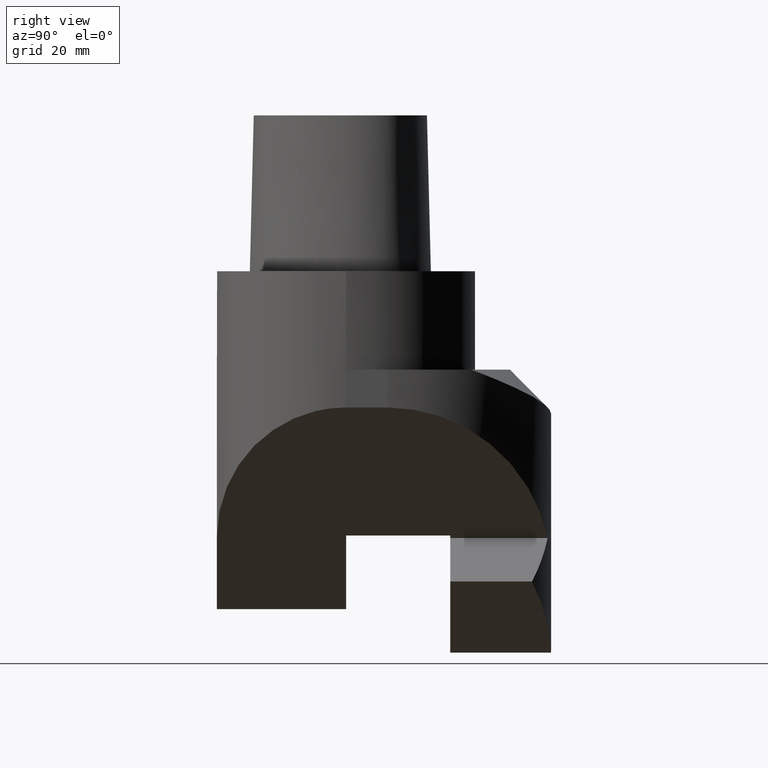
[diagram: clean part render]
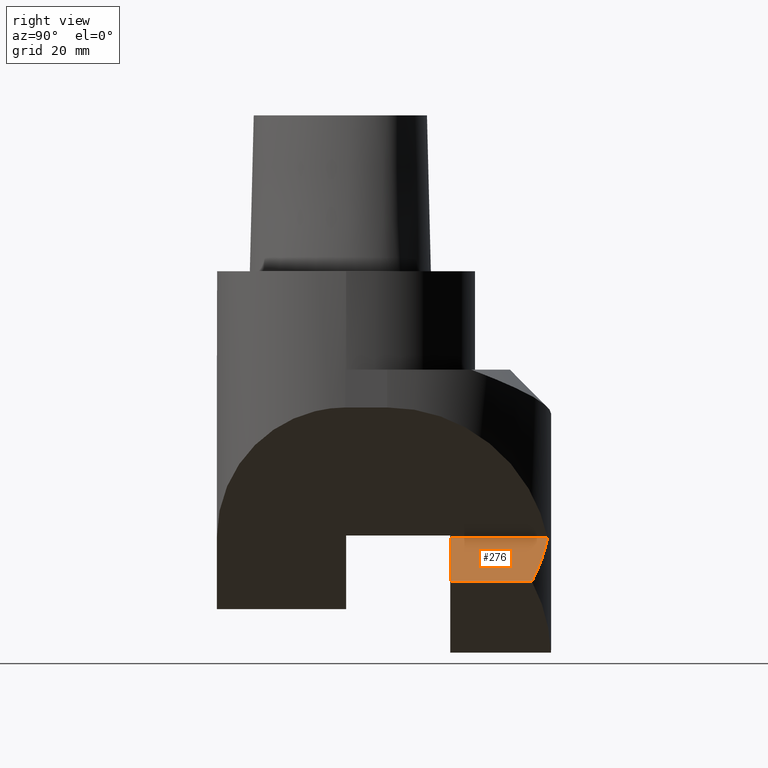
[diagram: same view with one face highlighted and labeled with its STEP entity id]
A machine part, right view. The second image highlights one B-rep face of the part: STEP entity #276.
In plain terms, the highlighted planar face has unit normal (-0.7071, -0, -0.7071).
Its self-contained STEP definition (entity closure, byte-faithful):
#141=EDGE_CURVE('Unnamed[1]',#378,#379,#380,.T.);
#153=EDGE_CURVE('Unnamed[1]',#396,#397,#398,.T.);
#215=EDGE_CURVE('Unnamed[1]',#397,#379,#478,.T.);
#269=EDGE_CURVE('Unnamed[1]',#378,#396,#544,.T.);
#276=ADVANCED_FACE('Unnamed[1]',(#551),#552,.F.);
#378=VERTEX_POINT('',#680);
#379=VERTEX_POINT('',#681);
#380=ELLIPSE('',#682,56.568542494924,40.0);
#396=VERTEX_POINT('',#704);
#397=VERTEX_POINT('',#705);
#398=LINE('',#706,#707);
#478=LINE('',#1006,#1007);
#544=LINE('',#1126,#1127);
#551=FACE_OUTER_BOUND('',#1150,.T.);
#552=PLANE('',#1151);
#680=CARTESIAN_POINT('',(-0.353553386863263,49.1615195928773,-65.0692821468613));
#681=CARTESIAN_POINT('',(10.253271031921,45.331147528125,-75.6756611562134));
#682=AXIS2_PLACEMENT_3D('',#1285,#1286,#1287);
#704=CARTESIAN_POINT('',(-0.353553386863266,25.4000947769365,-65.0692821468613));
#705=CARTESIAN_POINT('',(10.253271031921,25.4000707427662,-75.6756611562134));
#706=CARTESIAN_POINT('',(3.70056030393978,25.4000855899979,-69.1233958376643));
#707=VECTOR('',#1313,1.0);
#1006=CARTESIAN_POINT('',(10.253271031921,-1.86868676163768E-014,-75.6756611562134));
#1007=VECTOR('',#1412,1.0);
#1126=CARTESIAN_POINT('',(-0.353553386863271,-1.43833363435227E-014,-65.0692821468613));
#1127=VECTOR('',#1487,1.0);
#1150=EDGE_LOOP('',(#1492,#1493,#1494,#1495));
#1151=AXIS2_PLACEMENT_3D('',#1496,#1497,#1498);
#1285=CARTESIAN_POINT('',(-8.5006622714123,10.0000000000001,-56.9221732623122));
#1286=DIRECTION('',(-0.70710678118655,-2.71158374330523E-017,-0.707106781186545));
#1287=DIRECTION('',(-0.707106781186545,5.22962791512997E-016,0.70710678118655));
#1313=DIRECTION('',(0.707106781185637,-1.60235924278326E-006,-0.707106781185643));
#1412=DIRECTION('',(1.83697019872103E-016,1.0,-2.22044604925031E-016));
#1487=DIRECTION('',(-1.83697019872103E-016,-1.0,2.22044604925031E-016));
#1492=ORIENTED_EDGE('',*,*,#153,.T.);
#1493=ORIENTED_EDGE('',*,*,#215,.T.);
#1494=ORIENTED_EDGE('',*,*,#141,.F.);
#1495=ORIENTED_EDGE('',*,*,#269,.T.);
#1496=CARTESIAN_POINT('',(4.94974747017082,-1.65351062500438E-014,-70.3725830038954));
#1497=DIRECTION('',(-0.70710678118655,-2.71158374330523E-017,-0.707106781186545));
#1498=DIRECTION('',(-0.707106781186545,2.86902654303702E-016,0.70710678118655));